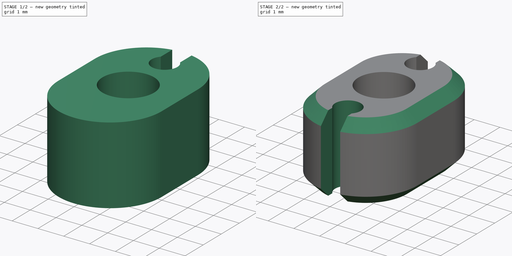
[diagram: build sequence overview — one tinted view per stage of 2, left to right]
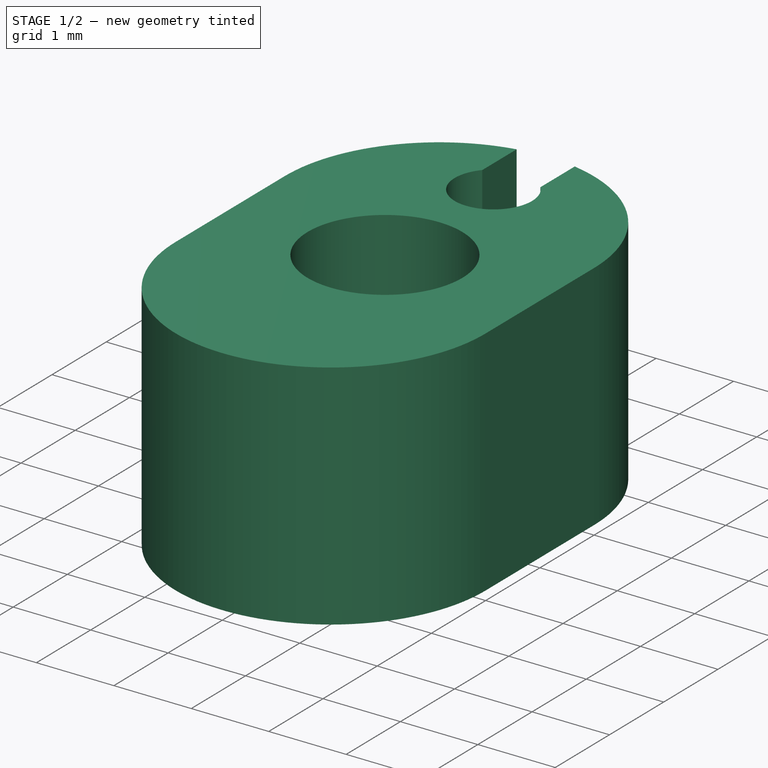
[diagram: stage 1 of 2 — iso view after this stage's code; geometry added in this stage tinted green]
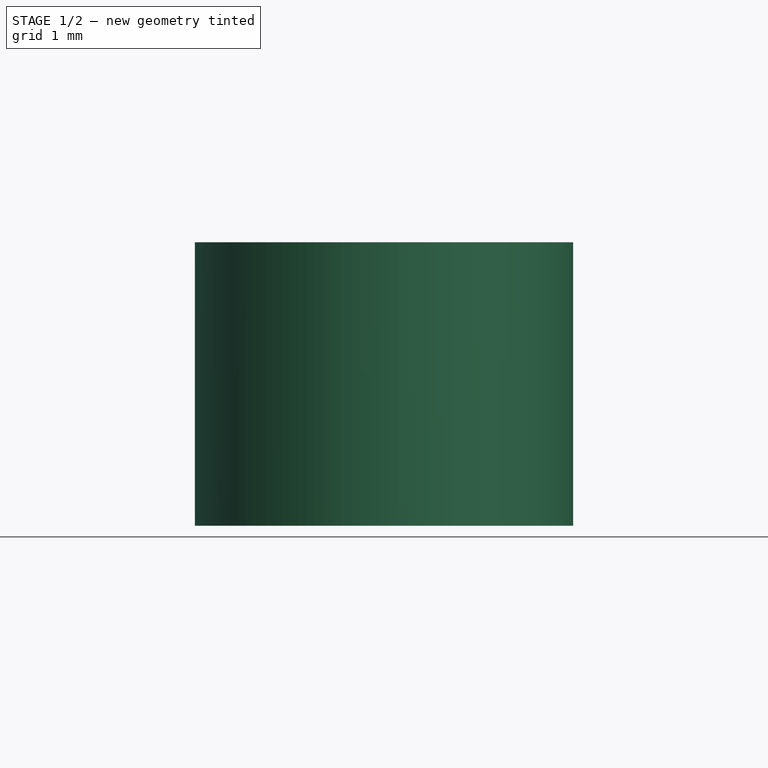
[diagram: stage 1 of 2 — front view after this stage's code; geometry added in this stage tinted green]
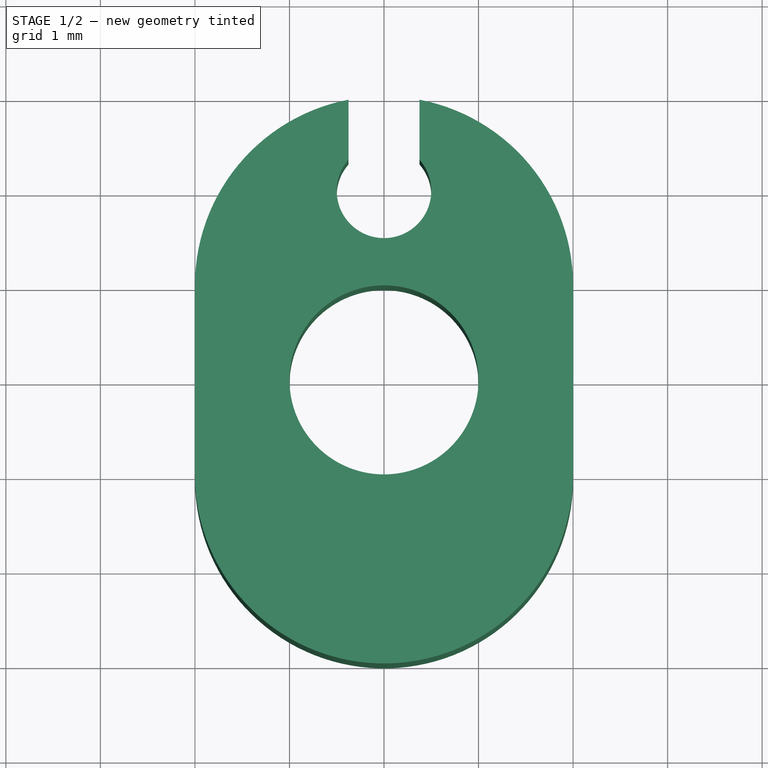
[diagram: stage 1 of 2 — top view after this stage's code; geometry added in this stage tinted green]
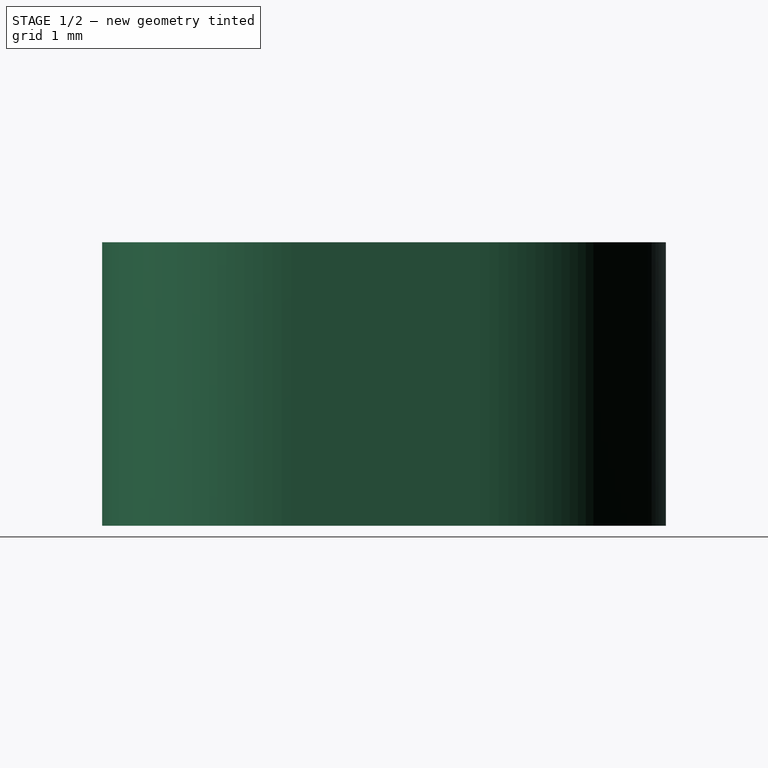
[diagram: stage 1 of 2 — right view after this stage's code; geometry added in this stage tinted green]
FCSTD DOCUMENT  (FreeCAD 1.2R45145 (Git))
Label: RubberBandCollet
License: All rights reserved
LicenseURL: https://en.wikipedia.org/wiki/All_rights_reserved
objects: Sketcher::SketchObject×2, App::Point×1, PartDesign::Pad×1, PartDesign::Pocket×1, PartDesign::PolarPattern×1, PartDesign::Chamfer×1, PartDesign::Body×1
note: 16 computed .brp shape members not serialized (recipe doc carries the construction recipe); baked Part::Feature solids carry a one-line shape summary decoded from their .brp

FEATURE [App::Point] Origin001
  Role = Origin
FEATURE [Sketcher::SketchObject] Sketch
  ArcFitTolerance = 1e-06
  AttachmentSupport = -> [Origin]
  ExternalTypes = [0]
  FullyConstrained = true
  MakeInternals = false
  MapMode = 5
  sketch-geometry (8):
    g0: Circle CenterX=0 CenterY=0 CenterZ=0 NormalX=0 NormalY=0 NormalZ=1 AngleXU=0 Radius=1
    g1: ArcOfCircle CenterX=0 CenterY=1 CenterZ=0 NormalX=0 NormalY=0 NormalZ=1 AngleXU=0 Radius=2 StartAngle=2e-16 EndAngle=3.14159
    g2: ArcOfCircle CenterX=0 CenterY=-1 CenterZ=0 NormalX=0 NormalY=0 NormalZ=1 AngleXU=0 Radius=2 StartAngle=3.14159 EndAngle=6.28319
    g3: LineSegment StartX=2 StartY=1 StartZ=0 EndX=2 EndY=-1 EndZ=0
    g4: LineSegment StartX=-2 StartY=1 StartZ=0 EndX=-2 EndY=-1 EndZ=0
    g5: LineSegment [constr] StartX=0 StartY=1 StartZ=0 EndX=0 EndY=-1 EndZ=0
    g6: GeomPoint [constr] X=0 Y=-3 Z=0
    g7: GeomPoint [constr] X=0 Y=3 Z=0
  constraints (17):
    c: Coincident(g0,g-1)
    c: Diameter(g0) = 2
    c: Tangent(g1,g3) = 1.5708
    c: Tangent(g1,g4) = -1.5708
    c: Tangent(g2,g3) = 1.5708
    c: Tangent(g2,g4) = -1.5708
    c: Equal(g1,g2)
    c: Vertical(g4)
    c: Coincident(g5,g1)
    c: Coincident(g5,g2)
    c: Symmetric(g5,g5,g0)
    c: Distance(g3,g4) = 4
    c: PointOnObject(g6,g2)
    c: PointOnObject(g6,g-2)
    c: PointOnObject(g7,g1)
    c: PointOnObject(g7,g-2)
    c: DistanceY(g6,g7) = 6
FEATURE [PartDesign::Pad] Pad
  Direction = (0,0,1)
  Length = 3
  Length2 = 10
  Profile = -> Sketch
  ReferenceAxis = -> Sketch [N_Axis]
  Refine = true
  SideType = 2
  Suppressed = false
  Type = 0
  Type2 = 0
FEATURE [Sketcher::SketchObject] Sketch001
  ArcFitTolerance = 1e-06
  AttachmentSupport = -> [Pad]
  ExternalTypes = [0]
  FullyConstrained = true
  MakeInternals = false
  MapMode = 5
  Placement = pos=(0,0,1.5) rot=(0,0,1;0rad)
  sketch-geometry (5):
    g0: ArcOfCircle CenterX=0 CenterY=2 CenterZ=0 NormalX=0 NormalY=0 NormalZ=1 AngleXU=0 Radius=0.5 StartAngle=2.41886 EndAngle=7.00592
    g1: GeomPoint [constr] X=0 Y=3 Z=0
    g2: LineSegment StartX=-0.375 StartY=2.33072 StartZ=0 EndX=-0.375 EndY=4.33072 EndZ=0
    g3: LineSegment StartX=-0.375 StartY=4.33072 StartZ=0 EndX=0.375 EndY=4.33072 EndZ=0
    g4: LineSegment StartX=0.375 StartY=4.33072 StartZ=0 EndX=0.375 EndY=2.33072 EndZ=0
  constraints (15):
    c: PointOnObject(g0,g-2)
    c: PointOnObject(g1,g-3)
    c: PointOnObject(g1,g-2)
    c: Vertical(g2)
    c: Horizontal(g3)
    c: Vertical(g4)
    c: Horizontal(g4,g2)
    c: Coincident(g2,g3)
    c: Coincident(g3,g4)
    c: DistanceX(g3,g3) = 0.75
    c: Diameter(g0) = 1
    c: Coincident(g2,g0)
    c: Coincident(g4,g0)
    c: DistanceY(g4,g4) = 2
    c: DistanceY(g-1,g0) = 2
FEATURE [PartDesign::Pocket] Pocket
  BaseFeature = -> Pad
  Direction = (0,0,-1)
  Length = 5
  Length2 = 5
  Profile = -> Sketch001
  ReferenceAxis = -> Sketch001 [N_Axis]
  Refine = true
  SideType = 0
  Suppressed = false
  Type = 1
  Type2 = 0
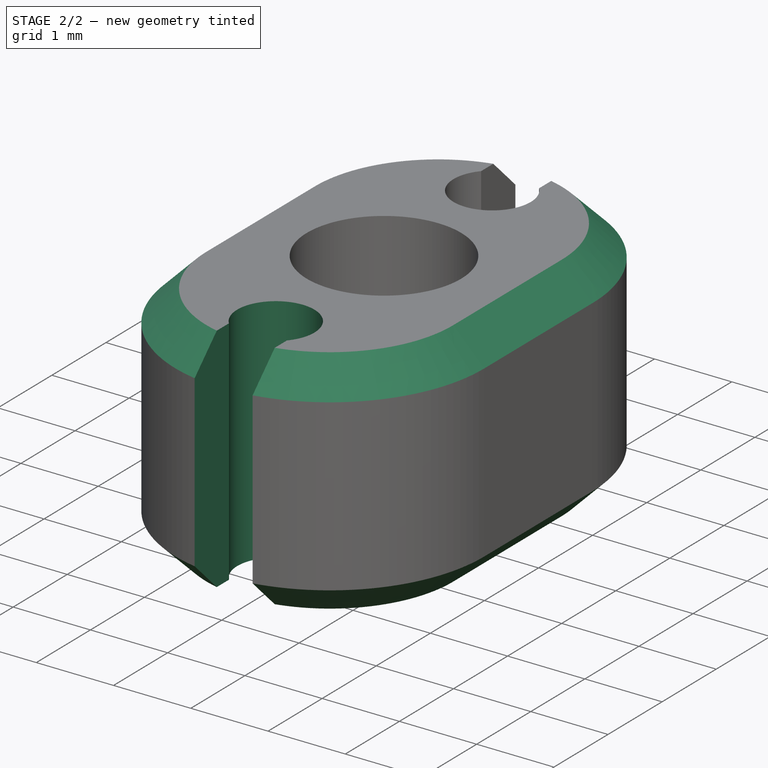
[diagram: stage 2 of 2 — iso view after this stage's code; geometry added in this stage tinted green]
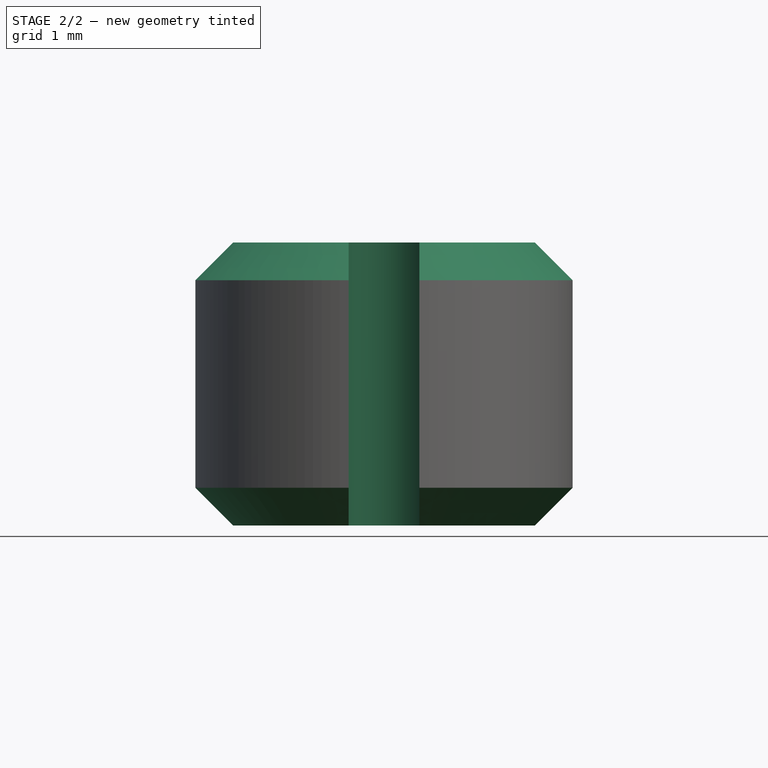
[diagram: stage 2 of 2 — front view after this stage's code; geometry added in this stage tinted green]
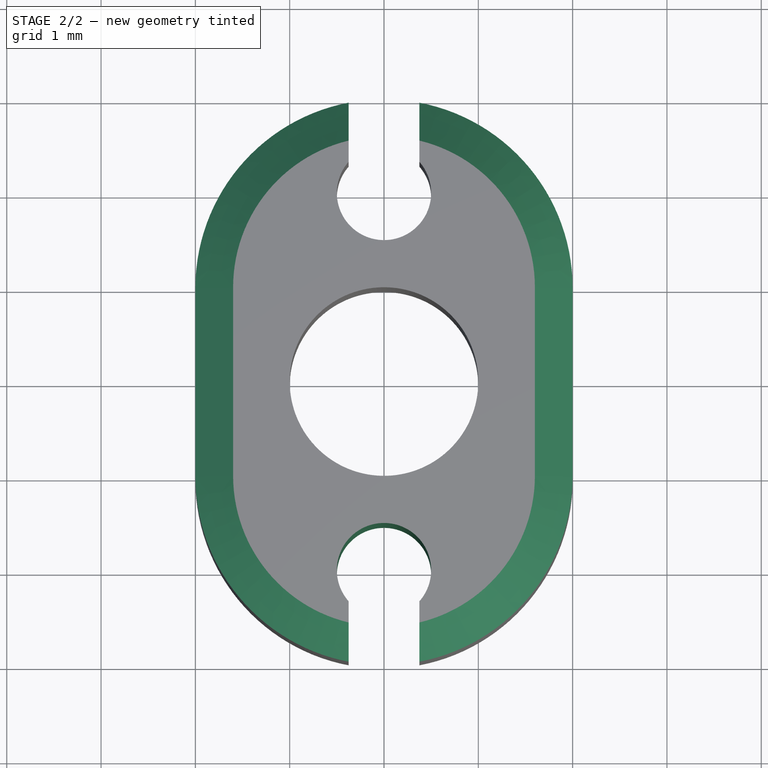
[diagram: stage 2 of 2 — top view after this stage's code; geometry added in this stage tinted green]
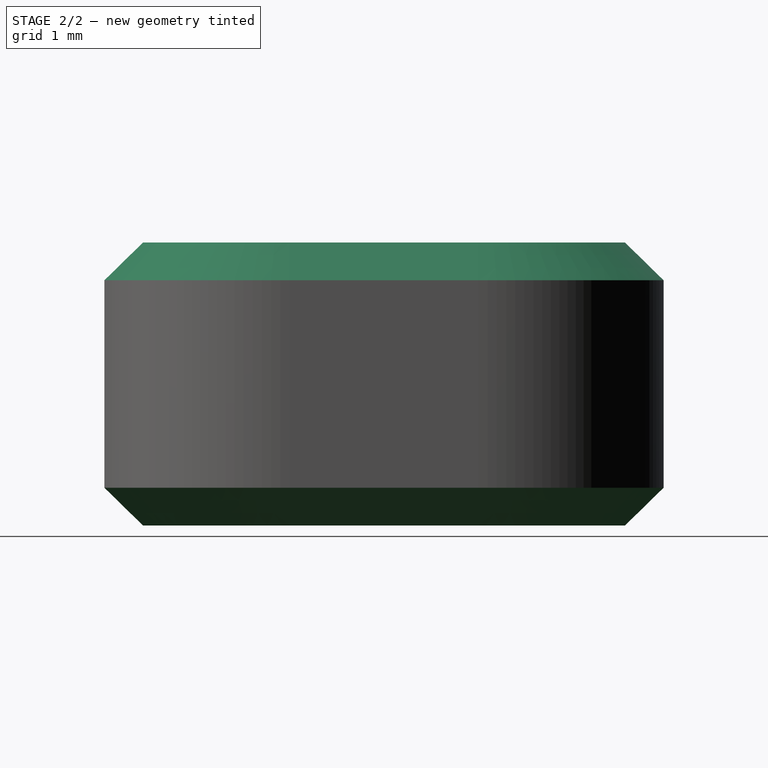
[diagram: stage 2 of 2 — right view after this stage's code; geometry added in this stage tinted green]
FEATURE [PartDesign::PolarPattern] PolarPattern
  Angle = 360
  Axis = -> Z_Axis
  BaseFeature = -> Pocket
  Mode = 0
  Occurrences = 2
  Offset = 120
  Originals = -> [Pocket]
  Refine = true
  SpacingPattern = [0]
  Spacings = [-1]
  Suppressed = false
  TransformMode = 0
FEATURE [PartDesign::Chamfer] Chamfer
  Angle = 45
  Base = -> PolarPattern [Edge11,Edge25,Edge5,Edge19]
  BaseFeature = -> PolarPattern
  ChamferType = 0
  FlipDirection = false
  Refine = true
  Size = 0.4
  Size2 = 1
  SupportTransform = false
  Suppressed = false
  UseAllEdges = false
FEATURE [PartDesign::Body] Body  label="RubberBandCollet"
  AllowCompound = false
  Group = -> [Sketch,Pad,Sketch001,Pocket,PolarPattern,Chamfer]
  Origin = -> Origin
  Tip = -> Chamfer
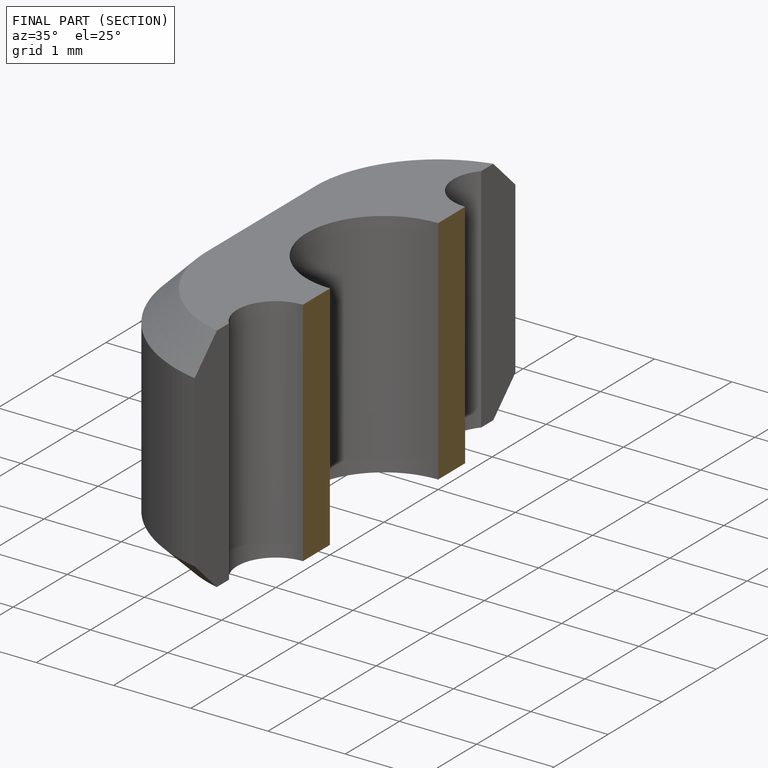
[diagram: finished part — half-section view (interior)]
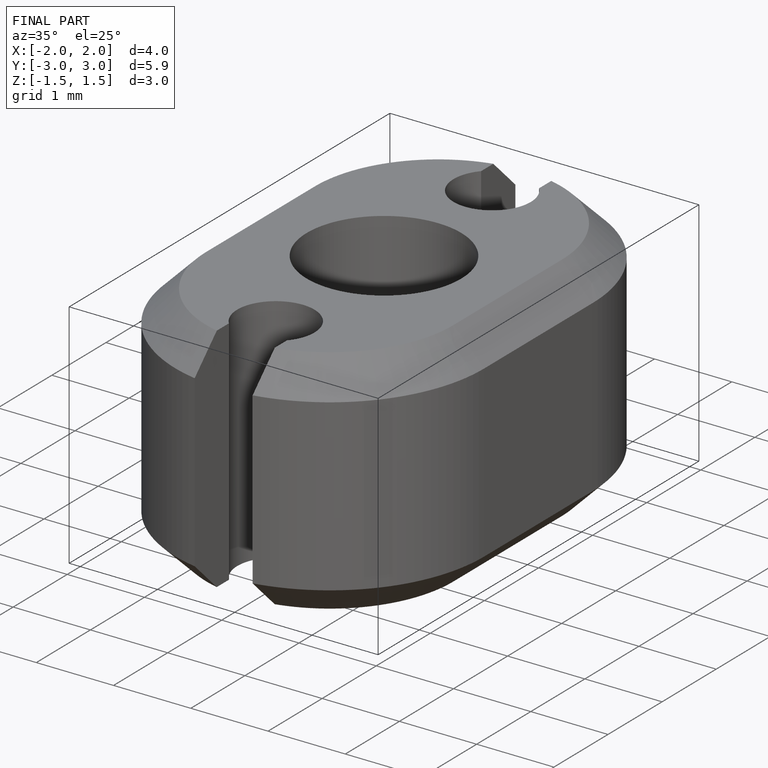
[diagram: finished part — iso view with bounding-box wireframe]
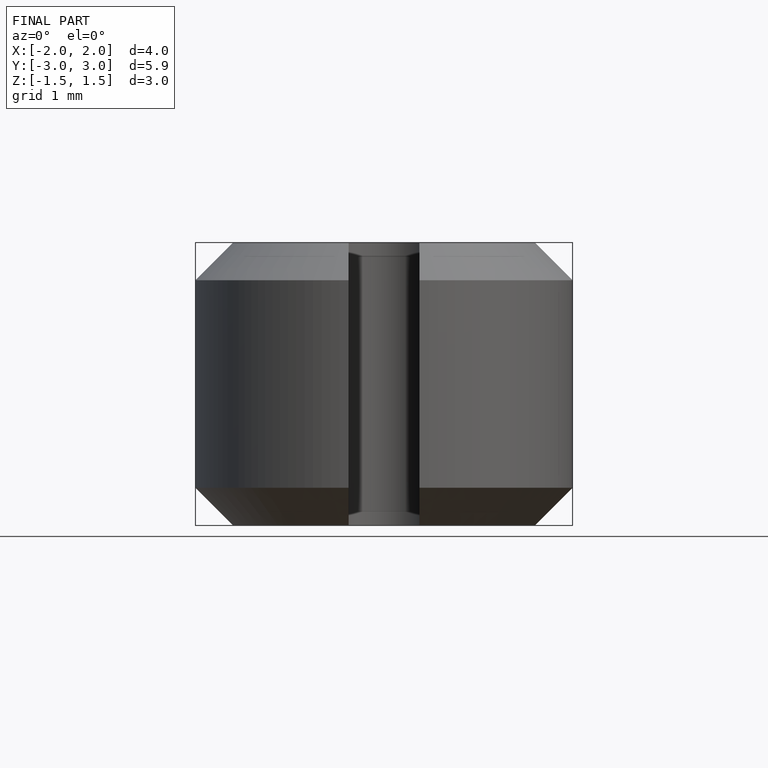
[diagram: finished part — front view with bounding-box wireframe]
